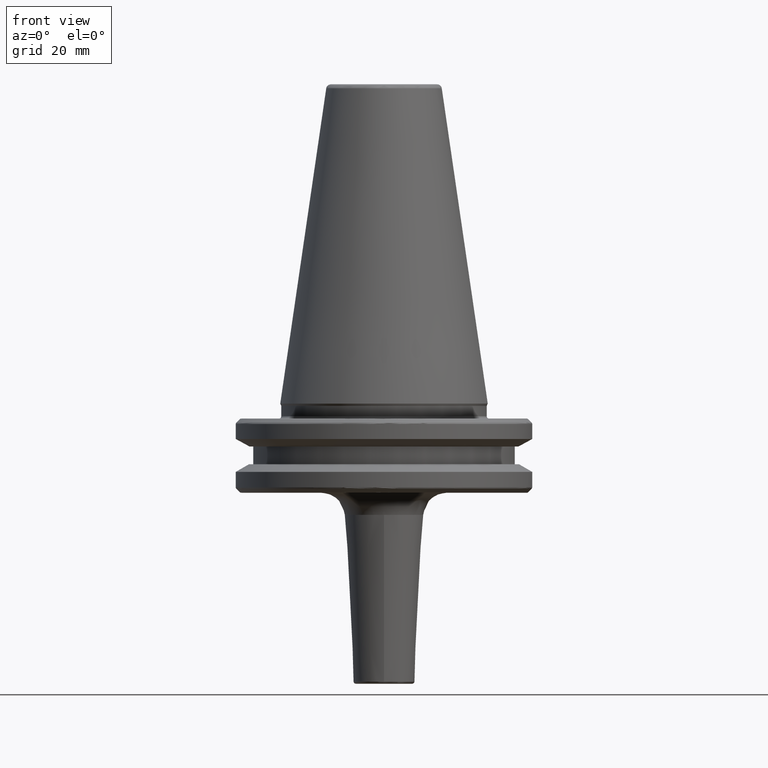
[diagram: clean part render]
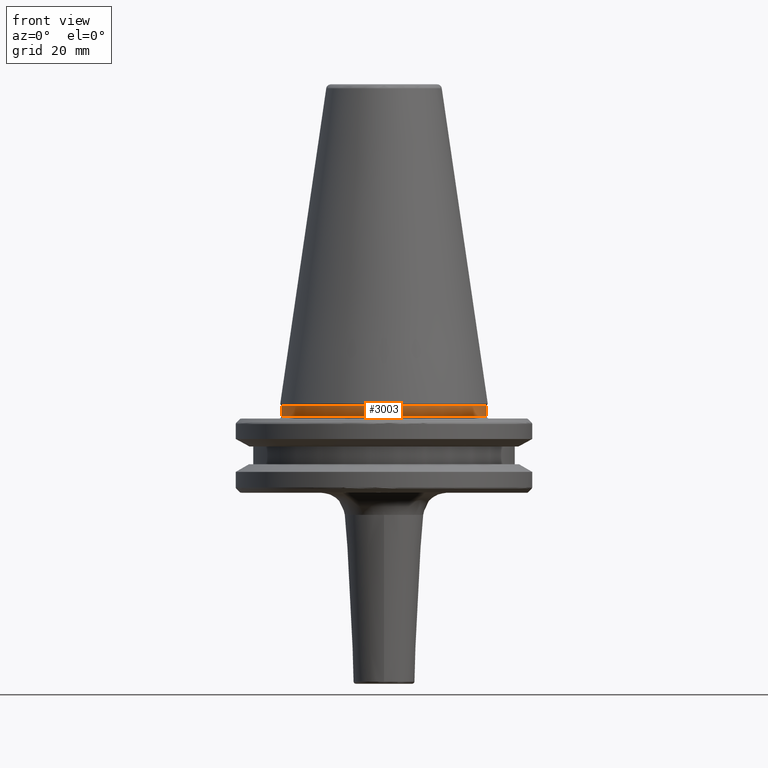
[diagram: same view with one face highlighted and labeled with its STEP entity id]
A machine part, front view. The second image highlights one B-rep face of the part: STEP entity #3003.
In plain terms, the highlighted cylindrical surface (partial cylindrical patch) has radius 22 mm, axis along (0, 0, 1).
Its self-contained STEP definition (entity closure, byte-faithful):
#13 = EDGE_LOOP ( 'NONE', ( #1226, #197, #1072, #1272 ) ) ;
#56 = VERTEX_POINT ( 'NONE', #133 ) ;
#119 = VECTOR ( 'NONE', #1405, 1000.000000000000000 ) ;
#133 = CARTESIAN_POINT ( 'NONE',  ( 22.00000000000000000, 0.0000000000000000000, -2.699999999999994000 ) ) ;
#174 = DIRECTION ( 'NONE',  ( 0.0000000000000000000, 0.0000000000000000000, 1.000000000000000000 ) ) ;
#197 = ORIENTED_EDGE ( 'NONE', *, *, #274, .T. ) ;
#274 = EDGE_CURVE ( 'NONE', #3025, #56, #2981, .T. ) ;
#411 = DIRECTION ( 'NONE',  ( 1.000000000000000000, 0.0000000000000000000, 0.0000000000000000000 ) ) ;
#448 = AXIS2_PLACEMENT_3D ( 'NONE', #887, #174, #411 ) ;
#527 = CARTESIAN_POINT ( 'NONE',  ( 0.0000000000000000000, 0.0000000000000000000, -0.4825140571146635500 ) ) ;
#742 = CARTESIAN_POINT ( 'NONE',  ( -22.00000000000000000, 2.694222958124176800E-015, 113.5216080541959500 ) ) ;
#747 = LINE ( 'NONE', #3019, #119 ) ;
#761 = DIRECTION ( 'NONE',  ( 1.000000000000000000, 0.0000000000000000000, -7.885106708985486600E-017 ) ) ;
#773 = CARTESIAN_POINT ( 'NONE',  ( 0.0000000000000000000, 0.0000000000000000000, 113.5216080541959500 ) ) ;
#887 = CARTESIAN_POINT ( 'NONE',  ( 0.0000000000000000000, 0.0000000000000000000, -2.699999999999994000 ) ) ;
#1001 = DIRECTION ( 'NONE',  ( 0.0000000000000000000, 0.0000000000000000000, 1.000000000000000000 ) ) ;
#1072 = ORIENTED_EDGE ( 'NONE', *, *, #1681, .T. ) ;
#1214 = DIRECTION ( 'NONE',  ( 0.0000000000000000000, 0.0000000000000000000, 1.000000000000000000 ) ) ;
#1226 = ORIENTED_EDGE ( 'NONE', *, *, #1517, .F. ) ;
#1272 = ORIENTED_EDGE ( 'NONE', *, *, #1595, .F. ) ;
#1324 = VERTEX_POINT ( 'NONE', #1980 ) ;
#1405 = DIRECTION ( 'NONE',  ( 0.0000000000000000000, 0.0000000000000000000, 1.000000000000000000 ) ) ;
#1517 = EDGE_CURVE ( 'NONE', #3025, #1324, #2950, .T. ) ;
#1595 = EDGE_CURVE ( 'NONE', #1324, #1763, #2720, .T. ) ;
#1646 = VECTOR ( 'NONE', #1214, 1000.000000000000000 ) ;
#1681 = EDGE_CURVE ( 'NONE', #56, #1763, #747, .T. ) ;
#1711 = CARTESIAN_POINT ( 'NONE',  ( -22.00000000000000000, 2.694222958124176800E-015, -2.699999999999994000 ) ) ;
#1763 = VERTEX_POINT ( 'NONE', #2866 ) ;
#1980 = CARTESIAN_POINT ( 'NONE',  ( -22.00000000000000000, 2.694222958124176800E-015, -0.4825140571146635500 ) ) ;
#2067 = FACE_OUTER_BOUND ( 'NONE', #13, .T. ) ;
#2156 = AXIS2_PLACEMENT_3D ( 'NONE', #773, #1001, #2173 ) ;
#2160 = DIRECTION ( 'NONE',  ( 0.0000000000000000000, 0.0000000000000000000, 1.000000000000000000 ) ) ;
#2173 = DIRECTION ( 'NONE',  ( 1.000000000000000000, 0.0000000000000000000, 0.0000000000000000000 ) ) ;
#2309 = AXIS2_PLACEMENT_3D ( 'NONE', #527, #2160, #761 ) ;
#2599 = CYLINDRICAL_SURFACE ( 'NONE', #2156, 22.00000000000000000 ) ;
#2720 = CIRCLE ( 'NONE', #2309, 22.00000000000000000 ) ;
#2866 = CARTESIAN_POINT ( 'NONE',  ( 22.00000000000000000, 0.0000000000000000000, -0.4825140571146652700 ) ) ;
#2950 = LINE ( 'NONE', #742, #1646 ) ;
#2981 = CIRCLE ( 'NONE', #448, 22.00000000000000000 ) ;
#3003 = ADVANCED_FACE ( 'NONE', ( #2067 ), #2599, .T. ) ;
#3019 = CARTESIAN_POINT ( 'NONE',  ( 22.00000000000000000, 0.0000000000000000000, 113.5216080541959500 ) ) ;
#3025 = VERTEX_POINT ( 'NONE', #1711 ) ;